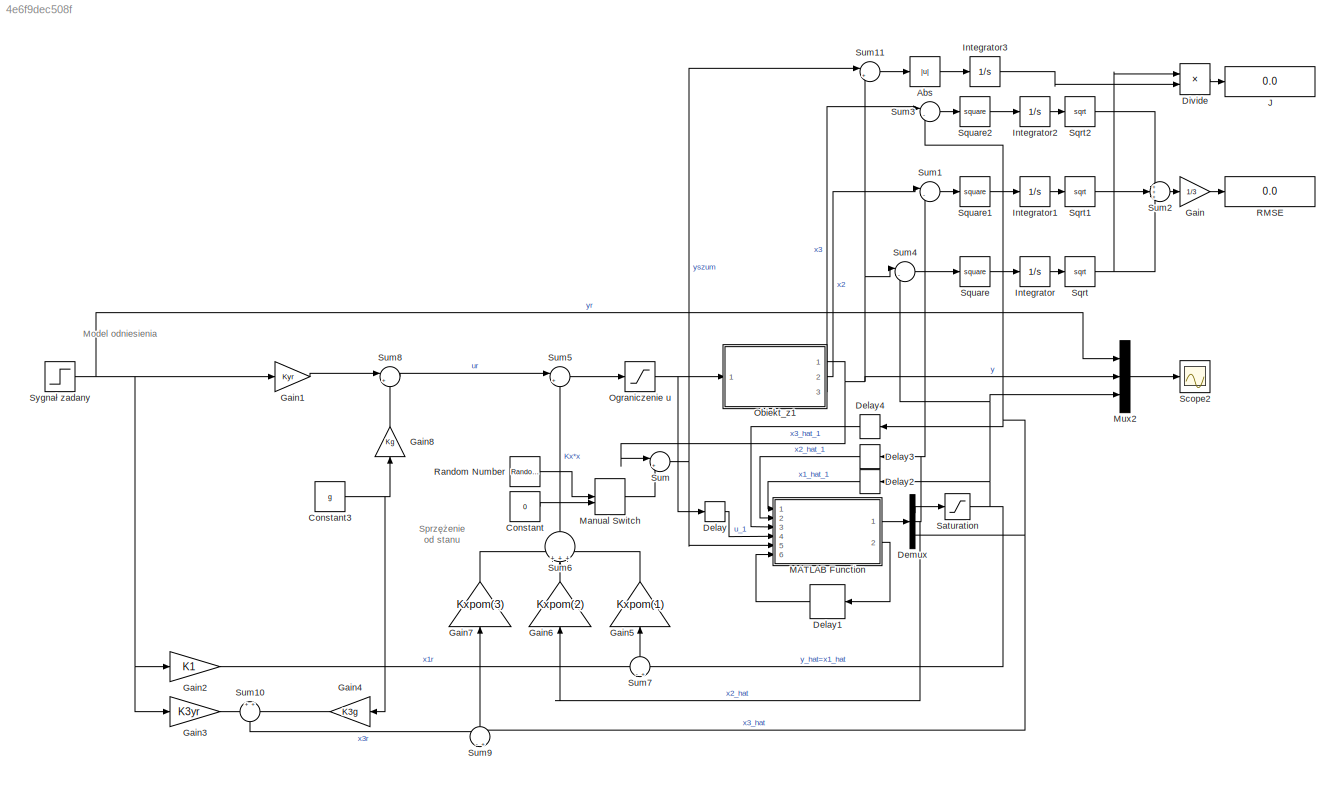
MODEL slx_4e6f9dec508f
KIND model
CONFIG AbsTol = auto
CONFIG EnableMultiTasking = off
CONFIG FixedStep = auto
CONFIG MaxStep = 0.001
CONFIG MinStep = auto
CONFIG RelTol = 1e-3
CONFIG SampleTimeConstraint = Unconstrained
CONFIG SolverName = VariableStepAuto
CONFIG StartTime = 0.0
CONFIG StopTime = 10.0
BLOCK [Step]  Sygnał zadany  
  After = 0.008
  SampleTime = 0
  Time = 0
BLOCK [Abs] Abs
  SaturateOnIntegerOverflow = off
BLOCK [Constant] Constant
  Value = 0
BLOCK [Constant] Constant3
  Value = g
BLOCK [Delay] Delay
  DelayLength = 1
  InputPortMap = u0
  Ports = [1, 1]
  SampleTime = Tp
BLOCK [Delay] Delay1
  DelayLength = 1
  InitialCondition = [0.0 0.0 0.0; 0.0 0.0 0.0; 0.0 0.0 0.0]
  InputPortMap = u0
  NameLocation = top
  Ports = [1, 1]
  SampleTime = Tp
BLOCK [Delay] Delay2
  DelayLength = 1
  InitialCondition = xd
  InputPortMap = u0
  NameLocation = top
  Ports = [1, 1]
  SampleTime = Tp
BLOCK [Delay] Delay3
  DelayLength = 1
  InputPortMap = u0
  NameLocation = top
  Ports = [1, 1]
  SampleTime = Tp
BLOCK [Delay] Delay4
  DelayLength = 1
  InputPortMap = u0
  NameLocation = top
  Ports = [1, 1]
  SampleTime = Tp
BLOCK [Demux] Demux
  Outputs = 3
  Ports = [1, 3]
BLOCK [Product] Divide
  Inputs = */
  Ports = [2, 1]
BLOCK [Gain] Gain
  Gain = 1/3
BLOCK [Gain] Gain1
  Gain = Kyr
BLOCK [Gain] Gain2
  Gain = K1
BLOCK [Gain] Gain3
  Gain = K3yr
BLOCK [Gain] Gain4
  Gain = K3g
  NameLocation = top
BLOCK [Gain] Gain5
  Gain = Kxpom(1)
  NameLocation = right
BLOCK [Gain] Gain6
  Gain = Kxpom(2)
  NameLocation = right
BLOCK [Gain] Gain7
  Gain = Kxpom(3)
  NameLocation = right
BLOCK [Gain] Gain8
  Gain = Kg
  NameLocation = right
BLOCK [Integrator] Integrator
  Ports = [1, 1]
BLOCK [Integrator] Integrator1
  Ports = [1, 1]
BLOCK [Integrator] Integrator2
  Ports = [1, 1]
BLOCK [Integrator] Integrator3
  Ports = [1, 1]
BLOCK [Display] J
  Decimation = 1
  Ports = [1]
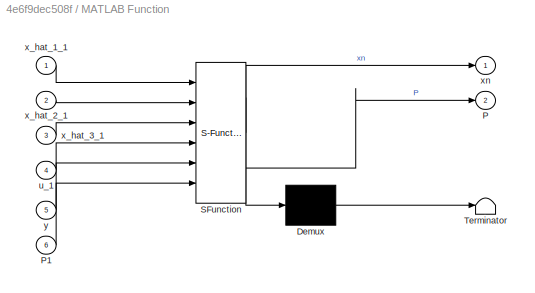
BLOCK [SubSystem] MATLAB Function
  ErrorFcn = Stateflow.Translate.translate
  PermitHierarchicalResolution = ExplicitOnly
  Ports = [6, 2]
  RequestExecContextInheritance = off
  SFBlockType = MATLAB Function
  SystemSampleTime = 0.0001
  TreatAsAtomicUnit = on
BLOCK [Demux] MATLAB Function/ Demux 
  Outputs = 1
  Ports = [1, 1]
BLOCK [S-Function] MATLAB Function/ SFunction 
  EnableBusSupport = on
  FunctionName = sf_sfun
  PortCounts = [6 3]
  Ports = [6, 3]
  SFcnIsStateOwnerBlock = off
  SFunctionDeploymentMode = off
  Tag = Stateflow S-Function 2
BLOCK [Terminator] MATLAB Function/ Terminator 
BLOCK [Outport] MATLAB Function/P
  Port = 2
BLOCK [Inport] MATLAB Function/P1
  Port = 6
BLOCK [Inport] MATLAB Function/u_1
  Port = 4
BLOCK [Inport] MATLAB Function/x_hat_1_1
BLOCK [Inport] MATLAB Function/x_hat_2_1
  Port = 2
BLOCK [Inport] MATLAB Function/x_hat_3_1
  Port = 3
BLOCK [Outport] MATLAB Function/xn
BLOCK [Inport] MATLAB Function/y
  Port = 5
BLOCK [ManualSwitch] Manual Switch
BLOCK [Mux] Mux2
  DisplayOption = bar
  Inputs = 3
  Ports = [3, 1]
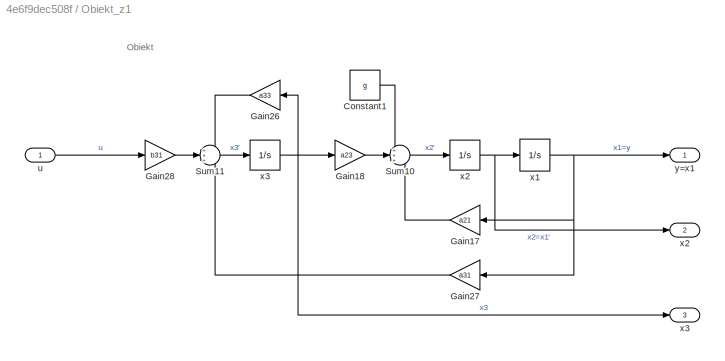
BLOCK [SubSystem] Obiekt_z1
  Ports = [1, 3]
  RequestExecContextInheritance = off
BLOCK [Integrator] Obiekt_z1/ x1
  InitialCondition = xd
  LimitOutput = on
  LowerSaturationLimit = 0
  Ports = [1, 1]
  UpperSaturationLimit = xd
BLOCK [Integrator] Obiekt_z1/ x2
  Ports = [1, 1]
BLOCK [Integrator] Obiekt_z1/ x3
  Ports = [1, 1]
BLOCK [Constant] Obiekt_z1/Constant1
  Value = g
BLOCK [Gain] Obiekt_z1/Gain17
  Gain = a21
  NameLocation = top
BLOCK [Gain] Obiekt_z1/Gain18
  Gain = a23
BLOCK [Gain] Obiekt_z1/Gain26
  Gain = a33
  NameLocation = top
BLOCK [Gain] Obiekt_z1/Gain27
  Gain = a31
  NameLocation = top
BLOCK [Gain] Obiekt_z1/Gain28
  Gain = b31
BLOCK [Sum] Obiekt_z1/Sum10
  Inputs = +++
  Ports = [3, 1]
BLOCK [Sum] Obiekt_z1/Sum11
  Inputs = +++
  Ports = [3, 1]
BLOCK [Inport] Obiekt_z1/u
BLOCK [Outport] Obiekt_z1/x2
  Port = 2
BLOCK [Outport] Obiekt_z1/x3
  Port = 3
BLOCK [Outport] Obiekt_z1/y=x1
BLOCK [Saturate] Ograniczenie u  
  LowerLimit = 0
  UpperLimit = 1
  ZeroCross = off
BLOCK [Display] RMSE
  Decimation = 1
  Ports = [1]
BLOCK [RandomNumber] Random Number
  SampleTime = 0.001
  Variance = 1e-8
BLOCK [Saturate] Saturation
  LowerLimit = 0
  UpperLimit = xd
BLOCK [Scope] Scope2
  Floating = off
  NumInputPorts = 1
  Ports = [1]
  ScopeSpecificationString = Simulink.scopes.TimeScopeBlockCfg('CurrentConfiguration', extmgr.ConfigurationSet(extmgr.Configuration('Core','General UI',true),extmgr.Configuration('Core','Source UI',true),extmgr.Configuration('Sources','WiredSimulink',true),extmgr.Configuration('Visuals','Time Domain',true,'SerializedDisplays',{struct('MinYLimReal','-0.00108','MaxYLimReal','0.01485','YLabelReal','','MinYLimMag','0.00000','MaxY...<+1414ch>
BLOCK [Sqrt] Sqrt
BLOCK [Sqrt] Sqrt1
BLOCK [Sqrt] Sqrt2
BLOCK [Math] Square
  Operator = square
  Ports = [1, 1]
BLOCK [Math] Square1
  Operator = square
  Ports = [1, 1]
BLOCK [Math] Square2
  Operator = square
  Ports = [1, 1]
BLOCK [Sum] Sum
  Inputs = |++
  Ports = [2, 1]
BLOCK [Sum] Sum1
  Inputs = |-+
  Ports = [2, 1]
BLOCK [Sum] Sum10
  NameLocation = left
  Ports = [2, 1]
BLOCK [Sum] Sum11
  Inputs = |+-
  Ports = [2, 1]
BLOCK [Sum] Sum2
  Inputs = +++
  Ports = [3, 1]
BLOCK [Sum] Sum3
  Inputs = |-+
  Ports = [2, 1]
BLOCK [Sum] Sum4
  Inputs = |-+
  Ports = [2, 1]
BLOCK [Sum] Sum5
  Inputs = |+-
  Ports = [2, 1]
BLOCK [Sum] Sum6
  Inputs = +++
  NameLocation = right
  Ports = [3, 1]
BLOCK [Sum] Sum7
  Inputs = -+
  NameLocation = right
  Ports = [2, 1]
BLOCK [Sum] Sum8
  Inputs = |++
  Ports = [2, 1]
BLOCK [Sum] Sum9
  Inputs = -+
  NameLocation = right
  Ports = [2, 1]
ANNOTATION (root): Model odniesienia
ANNOTATION (root): Sprzężenie od stanu
ANNOTATION Obiekt_z1: Obiekt
NET  Sygnał zadany  :1 -> Gain1:1, Gain2:1, Gain3:1, Mux2:1
LINE Abs:1 -> Integrator3:1
NET Constant3:1 -> Gain4:1, Gain8:1
LINE Constant:1 -> Manual Switch:2
LINE Delay1:1 -> MATLAB Function:6
LINE Delay2:1 -> MATLAB Function:1
LINE Delay3:1 -> MATLAB Function:2
LINE Delay4:1 -> MATLAB Function:3
LINE Delay:1 -> MATLAB Function:4
LINE Demux:1 -> Saturation:1
NET Demux:2 -> Delay3:1, Gain6:1, Sum1:2
NET Demux:3 -> Delay4:1, Sum3:2, Sum9:2
LINE Divide:1 -> J:1
LINE Gain1:1 -> Sum8:1
LINE Gain2:1 -> Sum7:1
LINE Gain3:1 -> Sum10:1
LINE Gain4:1 -> Sum10:2
LINE Gain5:1 -> Sum6:3
LINE Gain6:1 -> Sum6:2
LINE Gain7:1 -> Sum6:1
LINE Gain8:1 -> Sum8:2
LINE Gain:1 -> RMSE:1
LINE Integrator1:1 -> Sqrt1:1
LINE Integrator2:1 -> Sqrt2:1
LINE Integrator3:1 -> Divide:2
LINE Integrator:1 -> Sqrt:1
LINE MATLAB Function:1 -> Demux:1
LINE MATLAB Function:2 -> Delay1:1
LINE Manual Switch:1 -> Sum:2
LINE Mux2:1 -> Scope2:1
NET Obiekt_z1/ x1:1 -> Obiekt_z1/Gain17:1, Obiekt_z1/Gain27:1, Obiekt_z1/y=x1:1
NET Obiekt_z1/ x2:1 -> Obiekt_z1/ x1:1, Obiekt_z1/x2:1
NET Obiekt_z1/ x3:1 -> Obiekt_z1/Gain18:1, Obiekt_z1/Gain26:1, Obiekt_z1/x3:1
LINE Obiekt_z1/Constant1:1 -> Obiekt_z1/Sum10:1
LINE Obiekt_z1/Gain17:1 -> Obiekt_z1/Sum10:3
LINE Obiekt_z1/Gain18:1 -> Obiekt_z1/Sum10:2
LINE Obiekt_z1/Gain26:1 -> Obiekt_z1/Sum11:1
LINE Obiekt_z1/Gain27:1 -> Obiekt_z1/Sum11:3
LINE Obiekt_z1/Gain28:1 -> Obiekt_z1/Sum11:2
LINE Obiekt_z1/Sum10:1 -> Obiekt_z1/ x2:1
LINE Obiekt_z1/Sum11:1 -> Obiekt_z1/ x3:1
LINE Obiekt_z1/u:1 -> Obiekt_z1/Gain28:1
NET Obiekt_z1:1 -> Mux2:2, Sum11:2, Sum4:1, Sum:1
LINE Obiekt_z1:2 -> Sum1:1
LINE Obiekt_z1:3 -> Sum3:1
NET Ograniczenie u  :1 -> Delay:1, Obiekt_z1:1
LINE Random Number:1 -> Manual Switch:1
NET Saturation:1 -> Delay2:1, Mux2:3, Sum4:2, Sum7:2
LINE Sqrt1:1 -> Sum2:2
LINE Sqrt2:1 -> Sum2:1
NET Sqrt:1 -> Divide:1, Sum2:3
LINE Square1:1 -> Integrator1:1
LINE Square2:1 -> Integrator2:1
LINE Square:1 -> Integrator:1
LINE Sum10:1 -> Sum9:1
LINE Sum11:1 -> Abs:1
LINE Sum1:1 -> Square1:1
LINE Sum2:1 -> Gain:1
LINE Sum3:1 -> Square2:1
LINE Sum4:1 -> Square:1
LINE Sum5:1 -> Ograniczenie u  :1
LINE Sum6:1 -> Sum5:2
LINE Sum7:1 -> Gain5:1
LINE Sum8:1 -> Sum5:1
LINE Sum9:1 -> Gain7:1
NET Sum:1 -> MATLAB Function:5, Sum11:1
note: NET lines group one-source signal fan-out (src -> all destinations, sorted); 1:1 wires keep LINE
CHART MATLAB Function states=1 transitions=1
  STATE_LABEL 'eML_blk_kernel()'
  STATE_LABEL 'SCRIPT:\nfunction [xn,P]=Filtr_Kalmana(x_hat_1_1, x_hat_2_1, x_hat_3_1, u_1, y,P1)\n%funkcja bedaca filtrem Kalmana\n\n%Macierze modelu ciaglego\nA=[0,1,0;3.198854799795517e+03,0,-49.672670359171390;0,0,-1.862601595234874e+02];\nB=[0,0;0,9.810000000000000;4.687236914408560e+02,0];\nC=[1,0,0];\n\n%Dyskretyzacja modelu\nTp=0.001; %okres probkowania\nAd=eye(3)+A*Tp;\nBd=B*Tp;\nCd=C;\n\nu_pom=[u_1; 1];\nx_hat1=[x_hat...<+360ch>'
CHART  states=0 transitions=0
